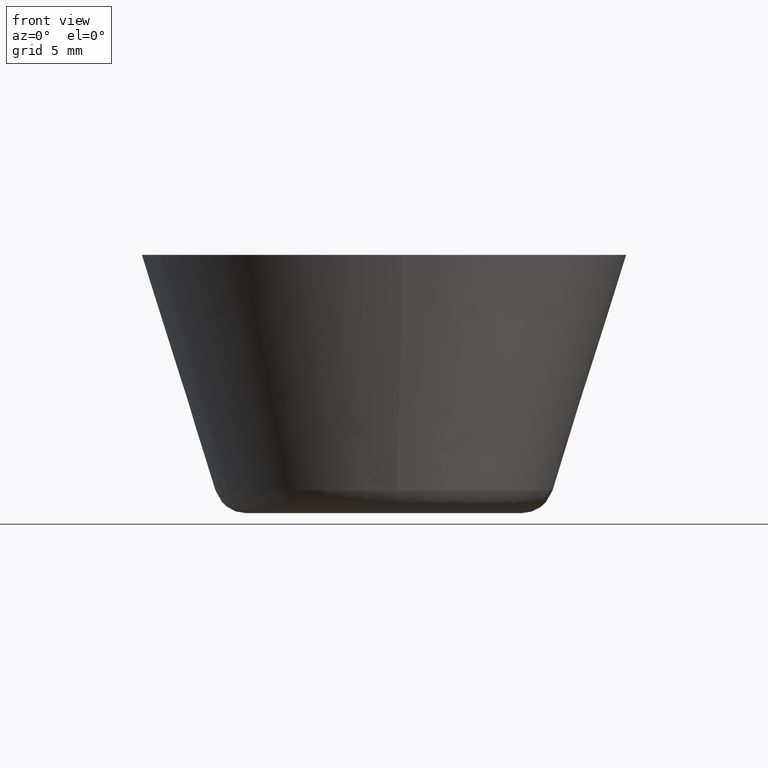
[diagram: clean part render]
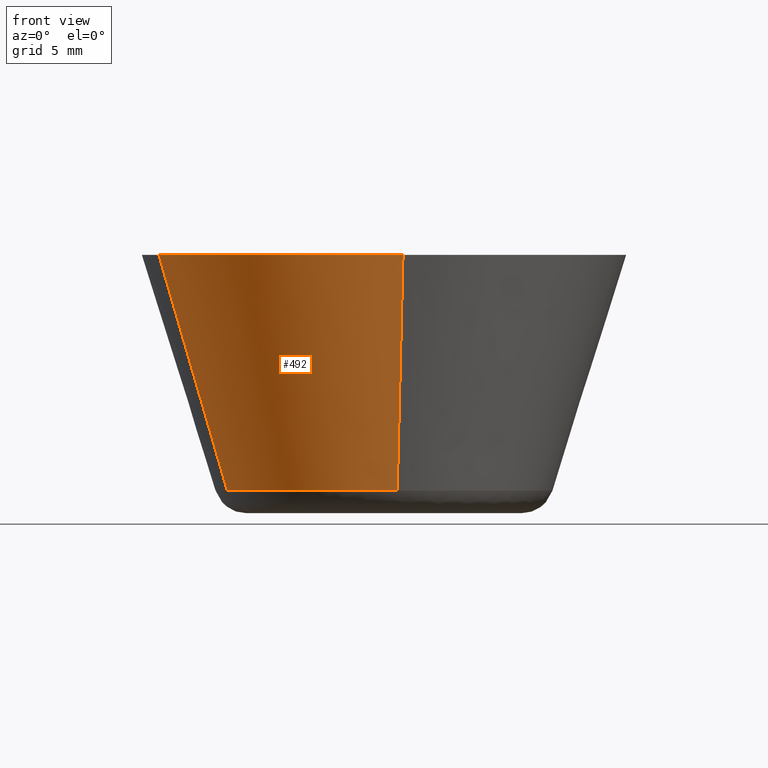
[diagram: same view with one face highlighted and labeled with its STEP entity id]
A machine part, front view. The second image highlights one B-rep face of the part: STEP entity #492.
In plain terms, the highlighted face is a freeform B-spline surface patch.
Its self-contained STEP definition (entity closure, byte-faithful):
#424=CARTESIAN_POINT('',(-9.624099755138655,-3.738585537900458,1.038536249999999));
#425=CARTESIAN_POINT('',(-9.612271390467090,-3.768481445253441,1.038536249999999));
#426=CARTESIAN_POINT('',(-6.794163938411678,-10.891180282898997,1.038536249999999));
#427=CARTESIAN_POINT('',(0.839131332426015,-10.290426916387787,1.038536250000000));
#428=CARTESIAN_POINT('',(0.868140430357681,-10.288143850867110,1.038536249999999));
#429=CARTESIAN_POINT('',(-14.091319182249395,-5.473925192490683,16.374036593750002));
#430=CARTESIAN_POINT('',(-14.074000444265407,-5.517697886402020,16.374036593749995));
#431=CARTESIAN_POINT('',(-9.947811750555598,-15.946540615999679,16.374036593749995));
#432=CARTESIAN_POINT('',(1.228631014004992,-15.066935494201095,16.374036593750009));
#433=CARTESIAN_POINT('',(1.271105268069740,-15.063592697910090,16.374036593749995));
#441=(BOUNDED_SURFACE()B_SPLINE_SURFACE(2,1,((#424,#429),(#425,#430),(#426,#431),(#427,#432),(#428,#433)),.UNSPECIFIED.,.F.,.F.,.U.)B_SPLINE_SURFACE_WITH_KNOTS((3,1,1,3),(2,2),(0.0,0.099513552533516,20.000119413965301,20.099618811483360),(0.0,16.066892167432538),.UNSPECIFIED.)GEOMETRIC_REPRESENTATION_ITEM()RATIONAL_B_SPLINE_SURFACE(((0.907680206113633,0.907680206113633),(0.906977188046664,0.906977188046664),(0.765685424949238,0.765685424949238),(1.001171530113685,1.001171530113685),(1.002343060227371,1.002343060227371)))REPRESENTATION_ITEM('')SURFACE());
#442=CARTESIAN_POINT('',(0.818999183986400,-10.406399021797251,1.403448406243327));
#443=VERTEX_POINT('',#442);
#444=CARTESIAN_POINT('',(-9.706462087134847,-3.840370222216521,1.403440654762399));
#445=VERTEX_POINT('',#444);
#446=CARTESIAN_POINT('',(0.818999183986400,-10.406399021797245,1.403448406243326));
#447=CARTESIAN_POINT('',(0.410131792018752,-10.438577488119355,1.403448200127219));
#448=CARTESIAN_POINT('',(0.000000111438537,-10.438577471909250,1.403447982698944));
#449=CARTESIAN_POINT('',(-7.095877095890447,-10.438577191450744,1.403444220872161));
#450=CARTESIAN_POINT('',(-9.706462087134847,-3.840370222216521,1.403440654762399));
#458=(BOUNDED_CURVE()B_SPLINE_CURVE(2,(#446,#447,#448,#449,#450),.UNSPECIFIED.,.F.,.U.)B_SPLINE_CURVE_WITH_KNOTS((3,2,3),(0.736331336337999,0.750000000000000,0.937532653506869),.UNSPECIFIED.)CURVE()GEOMETRIC_REPRESENTATION_ITEM()RATIONAL_B_SPLINE_CURVE((0.969723430685922,0.983986164412632,1.0,0.780291829926981,0.890203308901416))REPRESENTATION_ITEM(''));
#459=EDGE_CURVE('',#443,#445,#458,.T.);
#460=ORIENTED_EDGE('',*,*,#459,.F.);
#461=CARTESIAN_POINT('',(1.176877674963126,-14.953758607669529,15.999993339557220));
#462=VERTEX_POINT('',#461);
#463=CARTESIAN_POINT('',(0.818999183986400,-10.406399021797251,1.403448406243327));
#464=CARTESIAN_POINT('',(1.176877674963126,-14.953758607669529,15.999993339557220));
#465=QUASI_UNIFORM_CURVE('',1,(#463,#464),.UNSPECIFIED.,.F.,.U.);
#466=EDGE_CURVE('',#443,#462,#465,.T.);
#467=ORIENTED_EDGE('',*,*,#466,.T.);
#468=CARTESIAN_POINT('',(-13.947966128556700,-5.518529929664375,15.999992715519070));
#469=VERTEX_POINT('',#468);
#470=CARTESIAN_POINT('',(1.176877674963126,-14.953758607669529,15.999993339557214));
#471=CARTESIAN_POINT('',(0.589347183664466,-14.999997957930429,15.999993322963764));
#472=CARTESIAN_POINT('',(-0.000000038720543,-14.999997992641530,15.999993305459631));
#473=CARTESIAN_POINT('',(-10.196612230384220,-14.999998593196917,15.999993002611232));
#474=CARTESIAN_POINT('',(-13.947966128556695,-5.518529929664375,15.999992715519074));
#482=(BOUNDED_CURVE()B_SPLINE_CURVE(2,(#470,#471,#472,#473,#474),.UNSPECIFIED.,.F.,.U.)B_SPLINE_CURVE_WITH_KNOTS((3,2,3),(0.736331399193141,0.750000000000000,0.937532605507927),.UNSPECIFIED.)CURVE()GEOMETRIC_REPRESENTATION_ITEM()RATIONAL_B_SPLINE_CURVE((0.969723561859888,0.983986238052012,1.0,0.780291886161240,0.890203252637798))REPRESENTATION_ITEM(''));
#483=EDGE_CURVE('',#462,#469,#482,.T.);
#484=ORIENTED_EDGE('',*,*,#483,.T.);
#485=CARTESIAN_POINT('',(-9.706462087134847,-3.840370222216521,1.403440654762399));
#486=CARTESIAN_POINT('',(-13.947966128556700,-5.518529929664375,15.999992715519070));
#487=QUASI_UNIFORM_CURVE('',1,(#485,#486),.UNSPECIFIED.,.F.,.U.);
#488=EDGE_CURVE('',#445,#469,#487,.T.);
#489=ORIENTED_EDGE('',*,*,#488,.F.);
#490=EDGE_LOOP('',(#460,#467,#484,#489));
#491=FACE_OUTER_BOUND('',#490,.T.);
#492=ADVANCED_FACE('',(#491),#441,.T.);